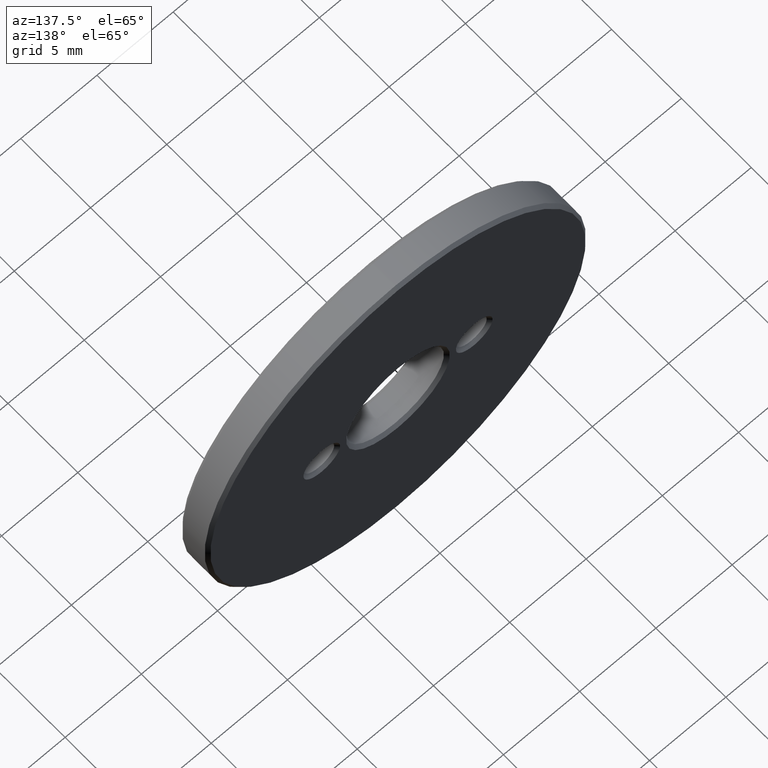
[diagram: clean part render]
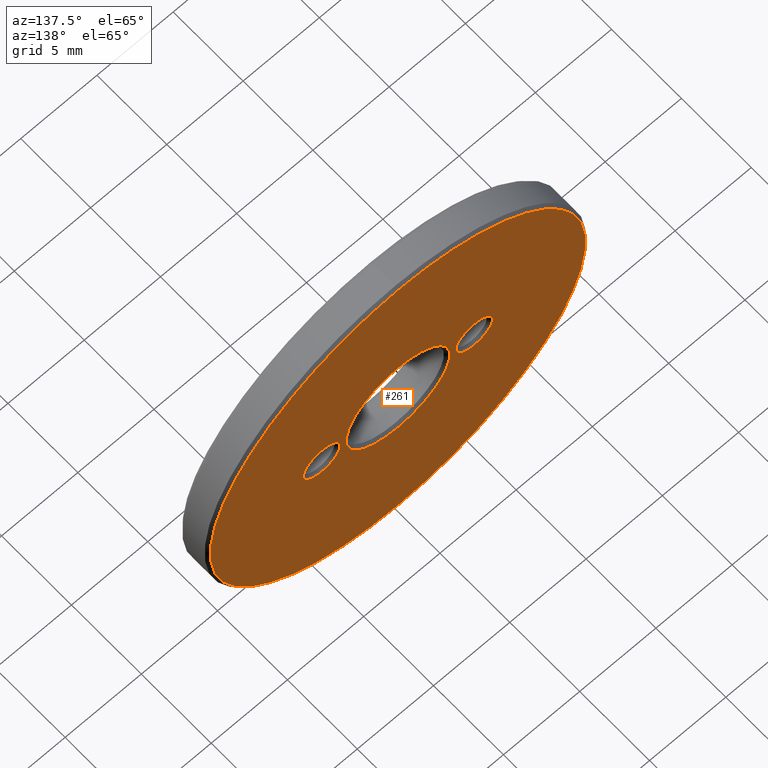
[diagram: same view with one face highlighted and labeled with its STEP entity id]
A machine part, auxiliary view. The second image highlights one B-rep face of the part: STEP entity #261.
In plain terms, the highlighted planar face has unit normal (0, 1, 0).
Its self-contained STEP definition (entity closure, byte-faithful):
#1 = FACE_BOUND ( 'NONE', #266, .T. ) ;
#4 = DIRECTION ( 'NONE',  ( 0.000000000000000000, 1.000000000000000000, 0.000000000000000000 ) ) ;
#6 = EDGE_LOOP ( 'NONE', ( #276 ) ) ;
#31 = CARTESIAN_POINT ( 'NONE',  ( 0.000000000000000000, 2.000000000000000000, 0.000000000000000000 ) ) ;
#57 = CIRCLE ( 'NONE', #364, 1.204999999999997851 ) ;
#59 = EDGE_CURVE ( 'NONE', #211, #211, #259, .T. ) ;
#63 = CARTESIAN_POINT ( 'NONE',  ( 5.000000000000000000, 2.000000000000000000, -1.836970198721029194E-15 ) ) ;
#68 = EDGE_CURVE ( 'NONE', #148, #148, #57, .T. ) ;
#76 = VERTEX_POINT ( 'NONE', #366 ) ;
#80 = CIRCLE ( 'NONE', #239, 3.400000000000003908 ) ;
#82 = AXIS2_PLACEMENT_3D ( 'NONE', #324, #172, #394 ) ;
#101 = DIRECTION ( 'NONE',  ( 0.000000000000000000, 0.000000000000000000, 1.000000000000000000 ) ) ;
#121 = DIRECTION ( 'NONE',  ( 0.000000000000000000, -0.000000000000000000, 1.000000000000000000 ) ) ;
#148 = VERTEX_POINT ( 'NONE', #203 ) ;
#161 = AXIS2_PLACEMENT_3D ( 'NONE', #63, #184, #275 ) ;
#165 = DIRECTION ( 'NONE',  ( -0.000000000000000000, -1.000000000000000000, -0.000000000000000000 ) ) ;
#168 = EDGE_CURVE ( 'NONE', #76, #76, #339, .T. ) ;
#172 = DIRECTION ( 'NONE',  ( 0.000000000000000000, 1.000000000000000000, 0.000000000000000000 ) ) ;
#180 = CARTESIAN_POINT ( 'NONE',  ( 0.000000000000000000, 2.000000000000000000, 3.400000000000003908 ) ) ;
#181 = PLANE ( 'NONE',  #188 ) ;
#184 = DIRECTION ( 'NONE',  ( -0.000000000000000000, -1.000000000000000000, -0.000000000000000000 ) ) ;
#188 = AXIS2_PLACEMENT_3D ( 'NONE', #31, #4, #121 ) ;
#198 = DIRECTION ( 'NONE',  ( 0.000000000000000000, 0.000000000000000000, 1.000000000000000000 ) ) ;
#203 = CARTESIAN_POINT ( 'NONE',  ( -5.000000000000000000, 2.000000000000000000, 1.204999999999997851 ) ) ;
#211 = VERTEX_POINT ( 'NONE', #243 ) ;
#239 = AXIS2_PLACEMENT_3D ( 'NONE', #302, #165, #101 ) ;
#240 = DIRECTION ( 'NONE',  ( -0.000000000000000000, -1.000000000000000000, -0.000000000000000000 ) ) ;
#242 = FACE_OUTER_BOUND ( 'NONE', #248, .T. ) ;
#243 = CARTESIAN_POINT ( 'NONE',  ( 0.000000000000000000, 2.000000000000000000, 12.29999999999999893 ) ) ;
#248 = EDGE_LOOP ( 'NONE', ( #368 ) ) ;
#258 = ORIENTED_EDGE ( 'NONE', *, *, #273, .T. ) ;
#259 = CIRCLE ( 'NONE', #82, 12.29999999999999893 ) ;
#261 = ADVANCED_FACE ( 'NONE', ( #272, #1, #242, #365 ), #181, .T. ) ;
#266 = EDGE_LOOP ( 'NONE', ( #258 ) ) ;
#272 = FACE_BOUND ( 'NONE', #6, .T. ) ;
#273 = EDGE_CURVE ( 'NONE', #356, #356, #80, .T. ) ;
#275 = DIRECTION ( 'NONE',  ( 0.000000000000000000, 0.000000000000000000, 1.000000000000000000 ) ) ;
#276 = ORIENTED_EDGE ( 'NONE', *, *, #68, .T. ) ;
#278 = ORIENTED_EDGE ( 'NONE', *, *, #168, .T. ) ;
#286 = EDGE_LOOP ( 'NONE', ( #278 ) ) ;
#302 = CARTESIAN_POINT ( 'NONE',  ( 0.000000000000000000, 2.000000000000000000, 0.000000000000000000 ) ) ;
#318 = CARTESIAN_POINT ( 'NONE',  ( -5.000000000000000000, 2.000000000000000000, 0.000000000000000000 ) ) ;
#324 = CARTESIAN_POINT ( 'NONE',  ( 0.000000000000000000, 2.000000000000000000, 0.000000000000000000 ) ) ;
#339 = CIRCLE ( 'NONE', #161, 1.204999999999997851 ) ;
#356 = VERTEX_POINT ( 'NONE', #180 ) ;
#364 = AXIS2_PLACEMENT_3D ( 'NONE', #318, #240, #198 ) ;
#365 = FACE_BOUND ( 'NONE', #286, .T. ) ;
#366 = CARTESIAN_POINT ( 'NONE',  ( 5.000000000000000000, 2.000000000000000000, 1.204999999999996074 ) ) ;
#368 = ORIENTED_EDGE ( 'NONE', *, *, #59, .T. ) ;
#394 = DIRECTION ( 'NONE',  ( 0.000000000000000000, 0.000000000000000000, 1.000000000000000000 ) ) ;